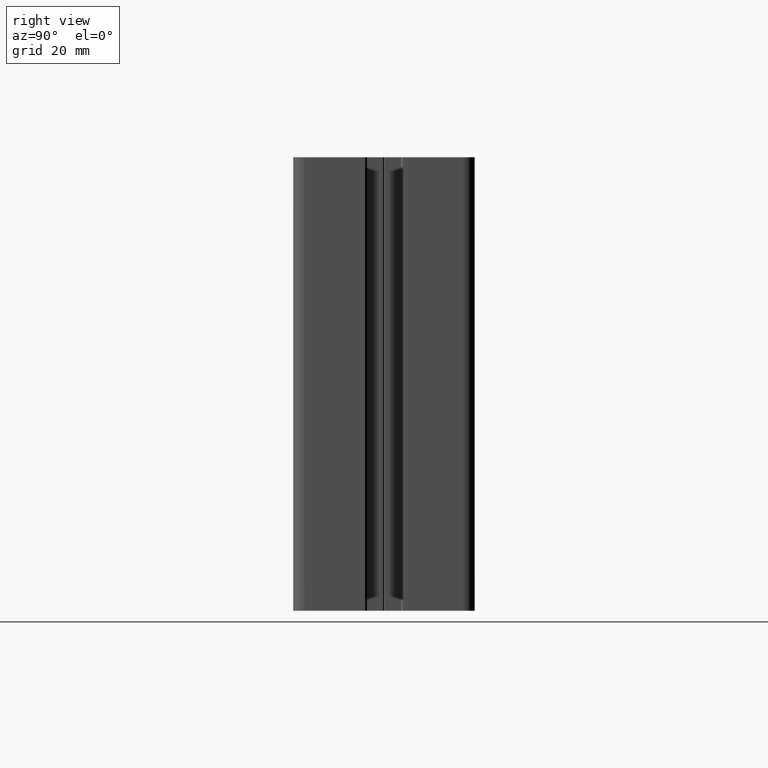
[diagram: clean part render]
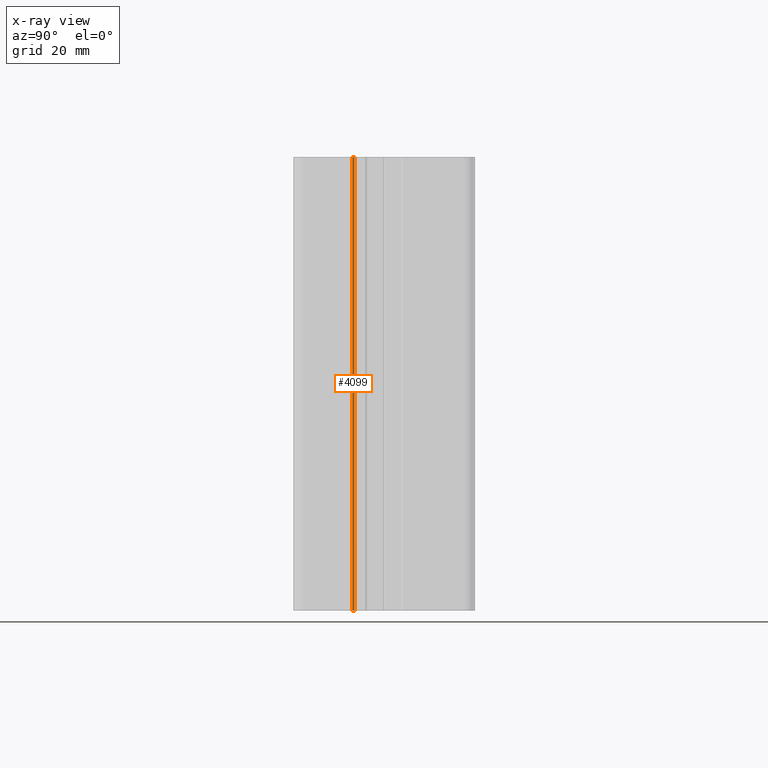
[diagram: x-ray — body ghosted, one internal face saturated and labeled with its STEP entity id]
A machine part, right view, then the same camera in x-ray: the body is ghosted and one INTERNAL B-rep face — a face not visible from any outside direction — is saturated and labeled: STEP entity #4099.
In plain terms, the highlighted cylindrical surface (edge-blend (fillet) strip) has radius 0.25 mm, axis along (0, 0, 1).
Its self-contained STEP definition (entity closure, byte-faithful):
#307=FACE_OUTER_BOUND('',#515,.T.);
#515=EDGE_LOOP('',(#3229,#3230,#3231,#3232));
#903=LINE('',#6534,#1359);
#904=LINE('',#6540,#1360);
#1359=VECTOR('',#5338,100.);
#1360=VECTOR('',#5345,100.);
#1623=CIRCLE('',#4421,0.25);
#1624=CIRCLE('',#4422,0.25);
#1941=VERTEX_POINT('',#6530);
#1942=VERTEX_POINT('',#6532);
#1943=VERTEX_POINT('',#6536);
#1944=VERTEX_POINT('',#6538);
#2485=EDGE_CURVE('',#1941,#1942,#903,.T.);
#2486=EDGE_CURVE('',#1943,#1941,#1623,.T.);
#2487=EDGE_CURVE('',#1944,#1942,#1624,.T.);
#2488=EDGE_CURVE('',#1943,#1944,#904,.T.);
#3229=ORIENTED_EDGE('',*,*,#2486,.T.);
#3230=ORIENTED_EDGE('',*,*,#2485,.T.);
#3231=ORIENTED_EDGE('',*,*,#2487,.F.);
#3232=ORIENTED_EDGE('',*,*,#2488,.F.);
#3940=CYLINDRICAL_SURFACE('',#4420,0.25);
#4099=ADVANCED_FACE('',(#307),#3940,.F.);
#4420=AXIS2_PLACEMENT_3D('',#6535,#5339,#5340);
#4421=AXIS2_PLACEMENT_3D('',#6537,#5341,#5342);
#4422=AXIS2_PLACEMENT_3D('',#6539,#5343,#5344);
#5338=DIRECTION('',(0.,0.,1.));
#5339=DIRECTION('center_axis',(0.,0.,1.));
#5340=DIRECTION('ref_axis',(0.,-1.,0.));
#5341=DIRECTION('center_axis',(0.,0.,-1.));
#5342=DIRECTION('ref_axis',(0.,-1.,0.));
#5343=DIRECTION('center_axis',(0.,0.,-1.));
#5344=DIRECTION('ref_axis',(0.,-1.,0.));
#5345=DIRECTION('',(0.,0.,1.));
#6530=CARTESIAN_POINT('',(-56.5,-6.5,0.));
#6532=CARTESIAN_POINT('',(-56.5,-6.5,100.));
#6534=CARTESIAN_POINT('',(-56.5,-6.5,0.));
#6535=CARTESIAN_POINT('Origin',(-56.5,-6.75,0.));
#6536=CARTESIAN_POINT('',(-56.5,-7.,0.));
#6537=CARTESIAN_POINT('Origin',(-56.5,-6.75,0.));
#6538=CARTESIAN_POINT('',(-56.5,-7.,100.));
#6539=CARTESIAN_POINT('Origin',(-56.5,-6.75,100.));
#6540=CARTESIAN_POINT('',(-56.5,-7.,0.));